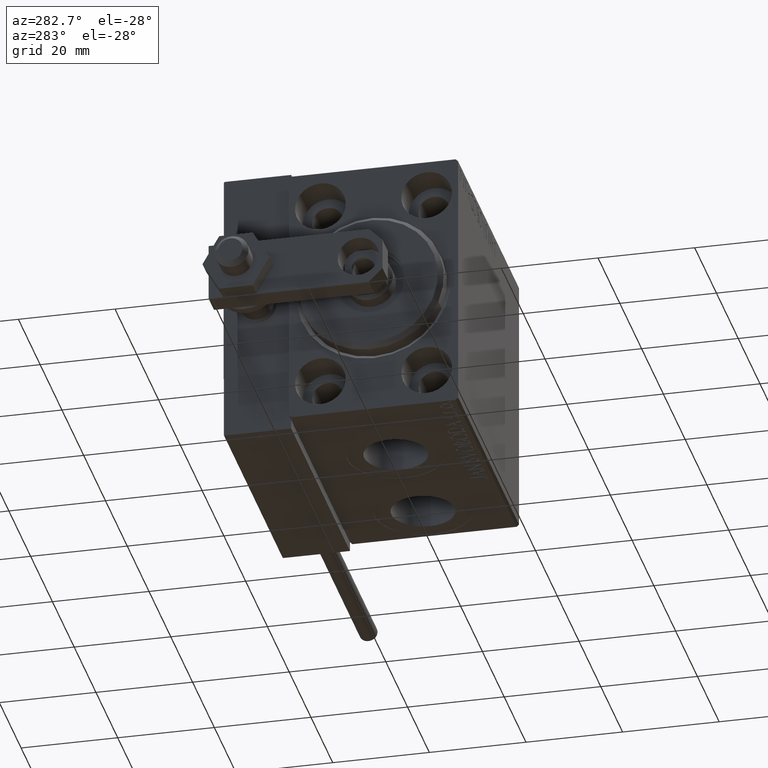
[diagram: clean part render]
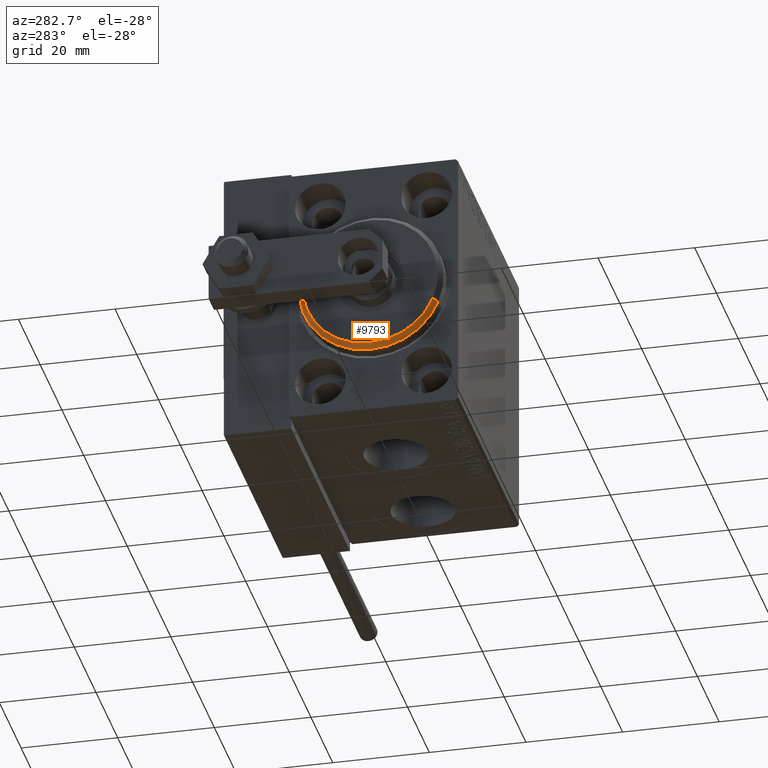
[diagram: same view with one face highlighted and labeled with its STEP entity id]
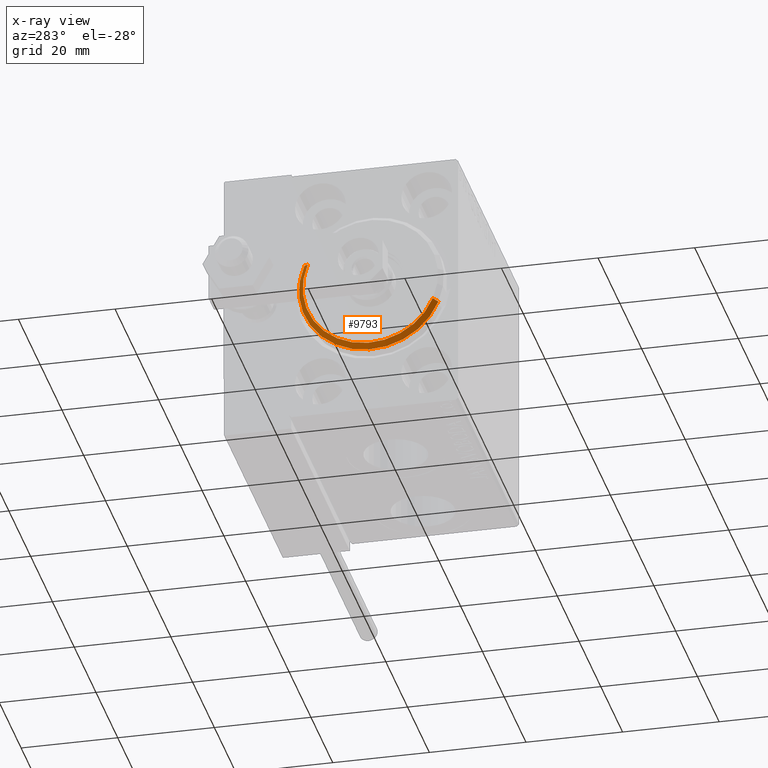
[diagram: x-ray of the same camera — body ghosted, the highlighted face saturated]
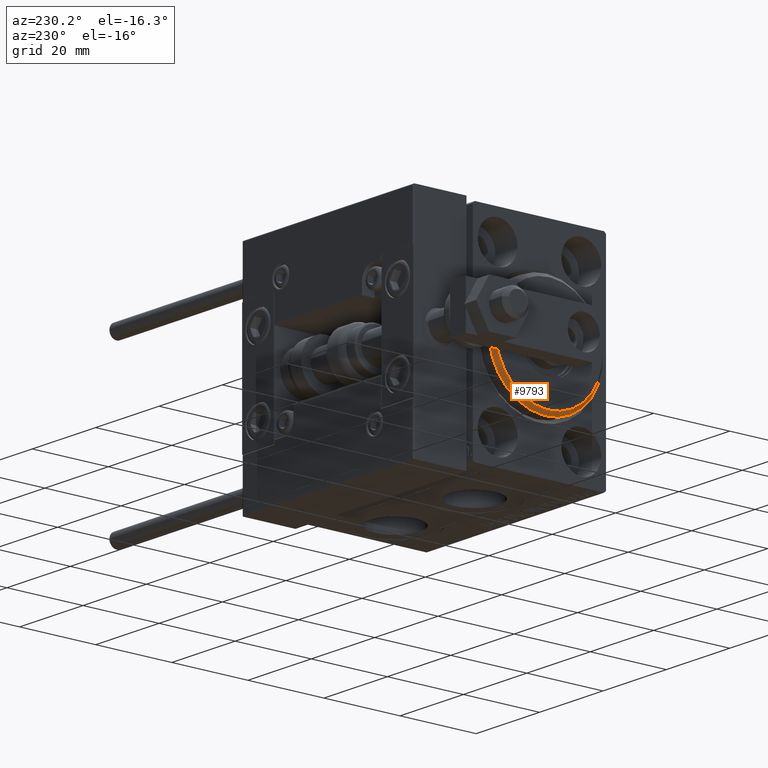
[diagram: same view with one face highlighted and labeled with its STEP entity id]
A machine part, auxiliary view. The second image highlights one B-rep face of the part: STEP entity #9793.
The next image is the same camera in x-ray: the body ghosted, the highlighted face saturated — about 0% of this face is hidden behind the body in this view.
A second angle (auxiliary view) of the same face is appended — the face is thin or edge-on in the first view.
In plain terms, the highlighted conical surface has half-angle 45 deg.
Its self-contained STEP definition (entity closure, byte-faithful):
#237 = DIRECTION ( 'NONE',  ( 1.000000000000000000, -0.000000000000000000, 0.000000000000000000 ) ) ;
#991 = ORIENTED_EDGE ( 'NONE', *, *, #42325, .T. ) ;
#2201 = CONICAL_SURFACE ( 'NONE', #43683, 13.99999999999999645, 0.7853981633974473908 ) ;
#2391 = AXIS2_PLACEMENT_3D ( 'NONE', #5564, #39980, #20885 ) ;
#2715 = CARTESIAN_POINT ( 'NONE',  ( 1.999999999999995781, 1.836970198721029589E-15, -15.00000000000000000 ) ) ;
#3342 = AXIS2_PLACEMENT_3D ( 'NONE', #46611, #237, #26750 ) ;
#4969 = CIRCLE ( 'NONE', #3342, 13.99999999999999645 ) ;
#5564 = CARTESIAN_POINT ( 'NONE',  ( 1.999999999999995781, 0.000000000000000000, 0.000000000000000000 ) ) ;
#8306 = VERTEX_POINT ( 'NONE', #38882 ) ;
#9235 = VECTOR ( 'NONE', #16574, 999.9999999999998863 ) ;
#9793 = ADVANCED_FACE ( 'NONE', ( #34969 ), #2201, .T. ) ;
#11127 = ORIENTED_EDGE ( 'NONE', *, *, #31768, .F. ) ;
#11661 = VERTEX_POINT ( 'NONE', #2715 ) ;
#14163 = VECTOR ( 'NONE', #20411, 999.9999999999998863 ) ;
#14878 = EDGE_CURVE ( 'NONE', #8306, #11661, #17844, .T. ) ;
#15088 = VERTEX_POINT ( 'NONE', #16926 ) ;
#16574 = DIRECTION ( 'NONE',  ( -0.7071067811865482389, 0.000000000000000000, 0.7071067811865469066 ) ) ;
#16926 = CARTESIAN_POINT ( 'NONE',  ( 3.000000000000000000, 1.775737858763662015E-15, -13.99999999999999645 ) ) ;
#17084 = CARTESIAN_POINT ( 'NONE',  ( 3.000000000000000000, 0.000000000000000000, 0.000000000000000000 ) ) ;
#17522 = VERTEX_POINT ( 'NONE', #18168 ) ;
#17844 = CIRCLE ( 'NONE', #2391, 15.00000000000000000 ) ;
#18168 = CARTESIAN_POINT ( 'NONE',  ( 3.000000000000000000, 0.000000000000000000, 13.99999999999999645 ) ) ;
#20411 = DIRECTION ( 'NONE',  ( -0.7071067811865482389, 8.659560562354926695E-17, -0.7071067811865469066 ) ) ;
#20885 = DIRECTION ( 'NONE',  ( 0.000000000000000000, 0.000000000000000000, -1.000000000000000000 ) ) ;
#24247 = LINE ( 'NONE', #40249, #9235 ) ;
#26750 = DIRECTION ( 'NONE',  ( 0.000000000000000000, 0.000000000000000000, -1.000000000000000000 ) ) ;
#30286 = EDGE_LOOP ( 'NONE', ( #11127, #991, #38033, #50124 ) ) ;
#31768 = EDGE_CURVE ( 'NONE', #15088, #17522, #4969, .T. ) ;
#31892 = DIRECTION ( 'NONE',  ( 0.000000000000000000, 0.000000000000000000, 1.000000000000000000 ) ) ;
#34969 = FACE_OUTER_BOUND ( 'NONE', #30286, .T. ) ;
#35721 = DIRECTION ( 'NONE',  ( -1.000000000000000000, 0.000000000000000000, 0.000000000000000000 ) ) ;
#38033 = ORIENTED_EDGE ( 'NONE', *, *, #14878, .F. ) ;
#38882 = CARTESIAN_POINT ( 'NONE',  ( 1.999999999999995781, 0.000000000000000000, 15.00000000000000000 ) ) ;
#39753 = LINE ( 'NONE', #43087, #14163 ) ;
#39980 = DIRECTION ( 'NONE',  ( -1.000000000000000000, 0.000000000000000000, 0.000000000000000000 ) ) ;
#40249 = CARTESIAN_POINT ( 'NONE',  ( 3.000000000000000000, 0.000000000000000000, 13.99999999999999645 ) ) ;
#42325 = EDGE_CURVE ( 'NONE', #15088, #11661, #39753, .T. ) ;
#42425 = EDGE_CURVE ( 'NONE', #17522, #8306, #24247, .T. ) ;
#43087 = CARTESIAN_POINT ( 'NONE',  ( 3.000000000000000000, 1.714505518806294244E-15, -13.99999999999999645 ) ) ;
#43683 = AXIS2_PLACEMENT_3D ( 'NONE', #17084, #35721, #31892 ) ;
#46611 = CARTESIAN_POINT ( 'NONE',  ( 3.000000000000000000, 0.000000000000000000, 0.000000000000000000 ) ) ;
#50124 = ORIENTED_EDGE ( 'NONE', *, *, #42425, .F. ) ;